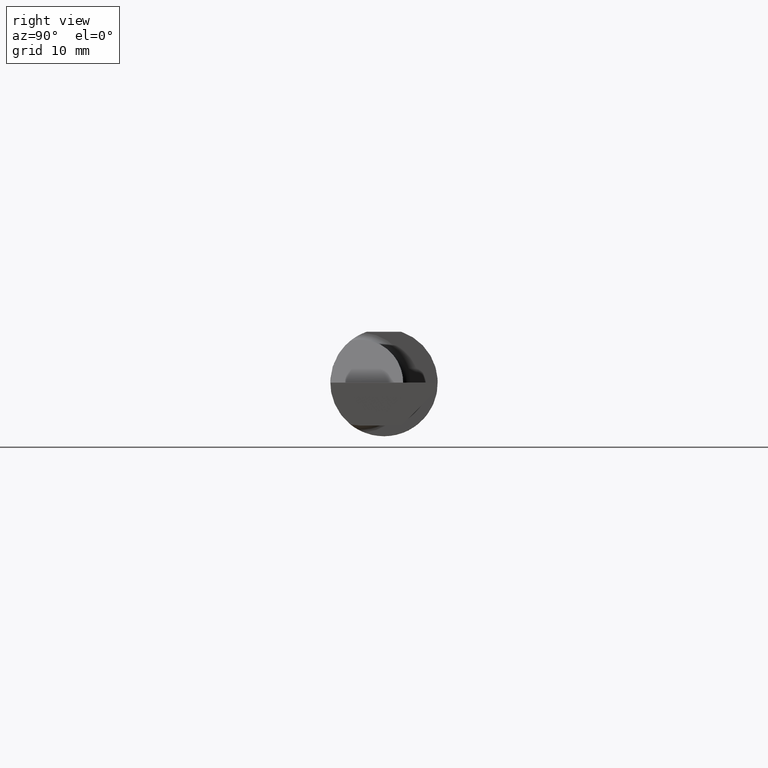
[diagram: clean part render]
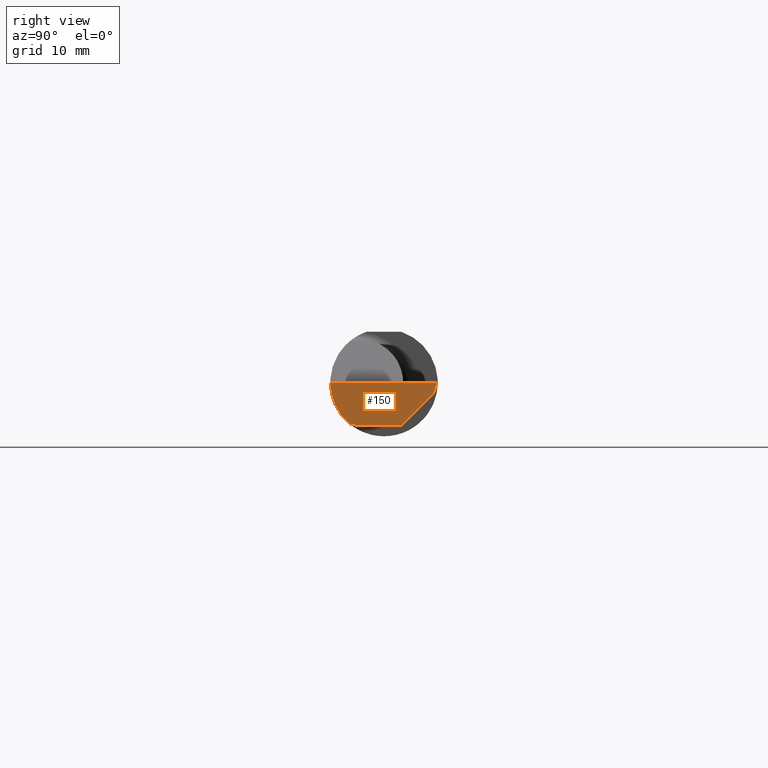
[diagram: same view with one face highlighted and labeled with its STEP entity id]
A machine part, right view. The second image highlights one B-rep face of the part: STEP entity #150.
In plain terms, the highlighted planar face has unit normal (-0.999, 0.0349, 0.0262).
Its self-contained STEP definition (entity closure, byte-faithful):
#5 = CARTESIAN_POINT ( 'NONE',  ( 2.486311922989707490, -0.09477667630339417504, -0.1499999999999999944 ) ) ;
#81 =( BOUNDED_CURVE ( )  B_SPLINE_CURVE ( 3, ( #782, #634, #864, #933 ),
 .UNSPECIFIED., .F., .F. ) 
 B_SPLINE_CURVE_WITH_KNOTS ( ( 4, 4 ),
 ( 6.032366188922103412, 6.926893589830550368 ),
 .UNSPECIFIED. ) 
 CURVE ( )  GEOMETRIC_REPRESENTATION_ITEM ( )  RATIONAL_B_SPLINE_CURVE ( ( 1.000000000000000000, 0.9344226172588803170, 0.9344226172588803170, 1.000000000000000000 ) ) 
 REPRESENTATION_ITEM ( '' )  );
#123 =( BOUNDED_CURVE ( )  B_SPLINE_CURVE ( 3, ( #326, #168, #5, #338 ),
 .UNSPECIFIED., .F., .T. ) 
 B_SPLINE_CURVE_WITH_KNOTS ( ( 4, 4 ),
 ( 0.6990500090944880007, 0.9270880441439325326 ),
 .UNSPECIFIED. ) 
 CURVE ( )  GEOMETRIC_REPRESENTATION_ITEM ( )  RATIONAL_B_SPLINE_CURVE ( ( 1.000000000000000000, 0.9956712472009929815, 0.9956712472009929815, 1.000000000000000000 ) ) 
 REPRESENTATION_ITEM ( '' )  );
#146 = DIRECTION ( 'NONE',  ( -0.9990483607430193924, 0.03488753751660920999, 0.02617694830787320806 ) ) ;
#150 = ADVANCED_FACE ( 'NONE', ( #383 ), #1028, .F. ) ;
#165 = CARTESIAN_POINT ( 'NONE',  ( 2.499872637845352408, 0.1835478877661963770, -0.003391952678096913417 ) ) ;
#168 = CARTESIAN_POINT ( 'NONE',  ( 2.485949549028435790, -0.1061291577212409298, -0.1486999626928445783 ) ) ;
#180 = CARTESIAN_POINT ( 'NONE',  ( 2.485628535317038867, -0.1172600179964007477, -0.1461167706989302817 ) ) ;
#192 = VECTOR ( 'NONE', #426, 39.37007874015748854 ) ;
#195 = DIRECTION ( 'NONE',  ( -0.03489949670249477970, -0.9993908270190959842, 0.000000000000000000 ) ) ;
#197 = VERTEX_POINT ( 'NONE', #180 ) ;
#229 = CARTESIAN_POINT ( 'NONE',  ( 2.500000000000000000, 0.1846500000000000363, 0.000000000000000000 ) ) ;
#273 = CARTESIAN_POINT ( 'NONE',  ( 2.491727426418679059, 0.06030305154314919563, -0.1499999999999999944 ) ) ;
#280 = CARTESIAN_POINT ( 'NONE',  ( 2.498573163503173156, 0.1723030515431495657, -0.03799999999999999212 ) ) ;
#315 = CARTESIAN_POINT ( 'NONE',  ( 2.486710951318955587, -0.08334999999999997966, -0.1499999999999999944 ) ) ;
#326 = CARTESIAN_POINT ( 'NONE',  ( 2.485628535317038867, -0.1172600179964007477, -0.1461167706989302817 ) ) ;
#329 = VECTOR ( 'NONE', #869, 39.37007874015748143 ) ;
#338 = CARTESIAN_POINT ( 'NONE',  ( 2.486710951318955587, -0.08334999999999997966, -0.1499999999999999944 ) ) ;
#342 = VERTEX_POINT ( 'NONE', #315 ) ;
#344 = EDGE_CURVE ( 'NONE', #197, #385, #81, .T. ) ;
#381 = LINE ( 'NONE', #551, #1016 ) ;
#383 = FACE_OUTER_BOUND ( 'NONE', #968, .T. ) ;
#385 = VERTEX_POINT ( 'NONE', #845 ) ;
#414 = ORIENTED_EDGE ( 'NONE', *, *, #344, .F. ) ;
#426 = DIRECTION ( 'NONE',  ( -0.03489949670249478664, -0.9993908270190959842, 0.000000000000000000 ) ) ;
#495 = ORIENTED_EDGE ( 'NONE', *, *, #984, .T. ) ;
#521 = VECTOR ( 'NONE', #195, 39.37007874015748854 ) ;
#551 = CARTESIAN_POINT ( 'NONE',  ( 2.498389373204160435, 0.1692961418071499968, -0.04100690973599954714 ) ) ;
#552 = AXIS2_PLACEMENT_3D ( 'NONE', #229, #146, #865 ) ;
#557 = EDGE_CURVE ( 'NONE', #727, #989, #716, .T. ) ;
#607 = CARTESIAN_POINT ( 'NONE',  ( 2.493549313964080305, 0.1124750847462631514, -0.1499999999999999944 ) ) ;
#633 = DIRECTION ( 'NONE',  ( -0.04317993108638582683, -0.7064472710512009757, -0.7064472710511987552 ) ) ;
#634 = CARTESIAN_POINT ( 'NONE',  ( 2.485002117657001186, -0.1623470442677541481, -0.1099340280425338545 ) ) ;
#655 = ORIENTED_EDGE ( 'NONE', *, *, #1032, .F. ) ;
#659 = ORIENTED_EDGE ( 'NONE', *, *, #785, .F. ) ;
#667 = LINE ( 'NONE', #1000, #192 ) ;
#668 = CARTESIAN_POINT ( 'NONE',  ( 2.500000000000000000, 0.1846500000000000363, 0.000000000000000000 ) ) ;
#716 = LINE ( 'NONE', #165, #329 ) ;
#727 = VERTEX_POINT ( 'NONE', #668 ) ;
#769 = ORIENTED_EDGE ( 'NONE', *, *, #871, .T. ) ;
#782 = CARTESIAN_POINT ( 'NONE',  ( 2.485628535317038867, -0.1172600179964007477, -0.1461167706989302817 ) ) ;
#785 = EDGE_CURVE ( 'NONE', #989, #1012, #381, .T. ) ;
#819 = ORIENTED_EDGE ( 'NONE', *, *, #557, .F. ) ;
#845 = CARTESIAN_POINT ( 'NONE',  ( 2.487009473749072441, -0.1873499999999999055, 0.000000000000000000 ) ) ;
#864 = CARTESIAN_POINT ( 'NONE',  ( 2.485494735025390867, -0.1873500000000000443, -0.05781030015605120170 ) ) ;
#865 = DIRECTION ( 'NONE',  ( -0.03489949670249477970, -0.9993908270190959842, 0.000000000000000000 ) ) ;
#869 = DIRECTION ( 'NONE',  ( -0.03568783471266506746, -0.3088201463263676727, -0.9504506802967118695 ) ) ;
#871 = EDGE_CURVE ( 'NONE', #197, #342, #123, .T. ) ;
#915 = LINE ( 'NONE', #607, #521 ) ;
#933 = CARTESIAN_POINT ( 'NONE',  ( 2.487009473749072441, -0.1873499999999999055, 0.000000000000000000 ) ) ;
#968 = EDGE_LOOP ( 'NONE', ( #769, #655, #659, #819, #495, #414 ) ) ;
#984 = EDGE_CURVE ( 'NONE', #727, #385, #667, .T. ) ;
#989 = VERTEX_POINT ( 'NONE', #280 ) ;
#1000 = CARTESIAN_POINT ( 'NONE',  ( 2.500000000000000000, 0.1846500000000000363, 0.000000000000000000 ) ) ;
#1012 = VERTEX_POINT ( 'NONE', #273 ) ;
#1016 = VECTOR ( 'NONE', #633, 39.37007874015748143 ) ;
#1028 = PLANE ( 'NONE',  #552 ) ;
#1032 = EDGE_CURVE ( 'NONE', #1012, #342, #915, .T. ) ;